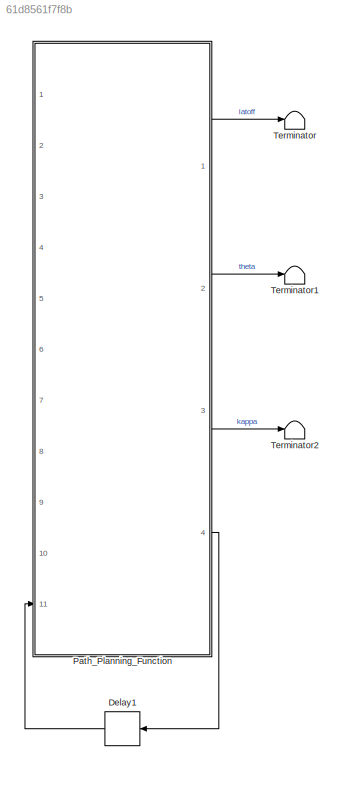
MODEL slx_61d8561f7f8b
KIND model
CONFIG AbsTol = auto
CONFIG EnableMultiTasking = off
CONFIG FixedStep = 0.001
CONFIG MaxStep = auto
CONFIG MinStep = auto
CONFIG RelTol = 1e-3
CONFIG SampleTimeConstraint = Unconstrained
CONFIG Solver = FixedStepAuto
CONFIG SolverName = FixedStepAuto
CONFIG StartTime = 0.0
CONFIG StopTime = 6
BLOCK [Delay] Delay1
  DelayLength = 1
  InitialCondition = zeros(400,8)
  InputPortMap = u0
  Ports = [1, 1]
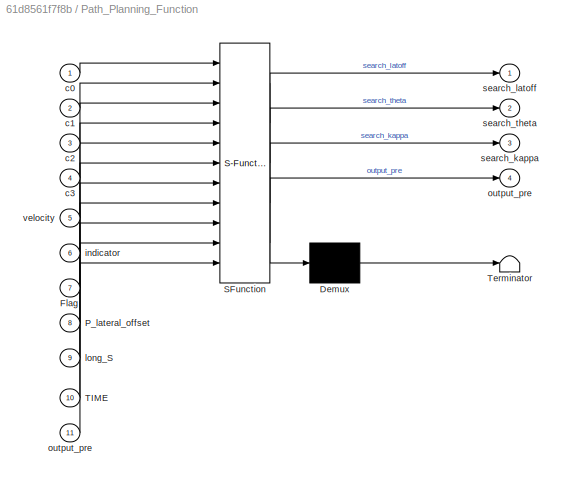
BLOCK [SubSystem] Path_Planning_Function 
  ErrorFcn = Stateflow.Translate.translate
  PermitHierarchicalResolution = ExplicitOnly
  Ports = [11, 4]
  RequestExecContextInheritance = off
  SFBlockType = MATLAB Function
  TreatAsAtomicUnit = on
BLOCK [Demux] Path_Planning_Function / Demux 
  Outputs = 1
  Ports = [1, 1]
BLOCK [S-Function] Path_Planning_Function / SFunction 
  EnableBusSupport = on
  FunctionName = sf_sfun
  PortCounts = [11 5]
  Ports = [11, 5]
  SFcnIsStateOwnerBlock = off
  SFunctionDeploymentMode = off
  Tag = Stateflow S-Function module_eng_dynamic_bezier_2018b 4
BLOCK [Terminator] Path_Planning_Function / Terminator 
BLOCK [Inport] Path_Planning_Function /Flag
  IconDisplay = Port number
  Port = 7
BLOCK [Inport] Path_Planning_Function /P_lateral_offset
  IconDisplay = Port number
  Port = 8
BLOCK [Inport] Path_Planning_Function /TIME
  IconDisplay = Port number
  Port = 10
BLOCK [Inport] Path_Planning_Function /c0
  IconDisplay = Port number
BLOCK [Inport] Path_Planning_Function /c1
  IconDisplay = Port number
  Port = 2
BLOCK [Inport] Path_Planning_Function /c2
  IconDisplay = Port number
  Port = 3
BLOCK [Inport] Path_Planning_Function /c3
  IconDisplay = Port number
  Port = 4
BLOCK [Inport] Path_Planning_Function /indicator
  IconDisplay = Port number
  Port = 6
BLOCK [Inport] Path_Planning_Function /long_S
  IconDisplay = Port number
  Port = 9
BLOCK [Outport] Path_Planning_Function /output_pre
  IconDisplay = Port number
  Port = 4
BLOCK [Inport] Path_Planning_Function /output_pre 
  IconDisplay = Port number
  Port = 11
BLOCK [Outport] Path_Planning_Function /search_kappa
  IconDisplay = Port number
  Port = 3
BLOCK [Outport] Path_Planning_Function /search_latoff
  IconDisplay = Port number
BLOCK [Outport] Path_Planning_Function /search_theta
  IconDisplay = Port number
  Port = 2
BLOCK [Inport] Path_Planning_Function /velocity
  IconDisplay = Port number
  Port = 5
BLOCK [Terminator] Terminator
BLOCK [Terminator] Terminator1
BLOCK [Terminator] Terminator2
LINE Delay1:1 -> Path_Planning_Function :11
LINE Path_Planning_Function :1 -> Terminator:1
LINE Path_Planning_Function :2 -> Terminator1:1
LINE Path_Planning_Function :3 -> Terminator2:1
LINE Path_Planning_Function :4 -> Delay1:1
CHART Path_Planning_Function
 states=1 transitions=1
  STATE_LABEL 'eML_blk_kernel()'
  STATE_LABEL 'SCRIPT:\nfunction [search_latoff,search_theta,search_kappa,output_pre] = LineGeneration(c0,c1,c2,c3,velocity,...\n    indicator,Flag,P_lateral_offset,long_S,TIME,output_pre)\n   %% the main function, which is used to generate changing lane curve dynamically    \n    output = output_pre;\n    search_latoff = 0;\n    search_theta = 0;\n    search_kappa = 0;\n    velocity_ms = velocity /3.6 ;\n    \n    if Fla...<+3608ch>'
